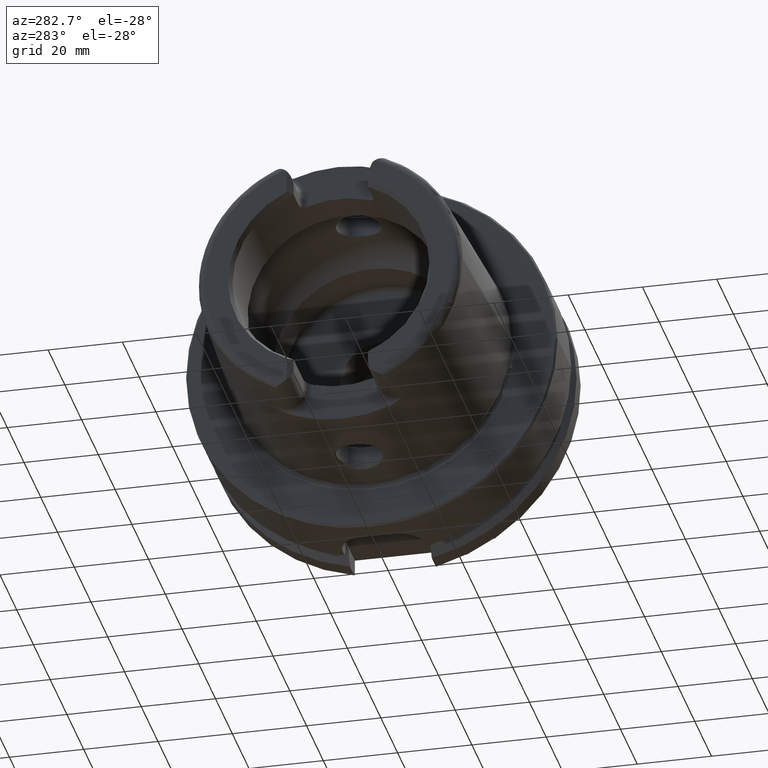
[diagram: clean part render]
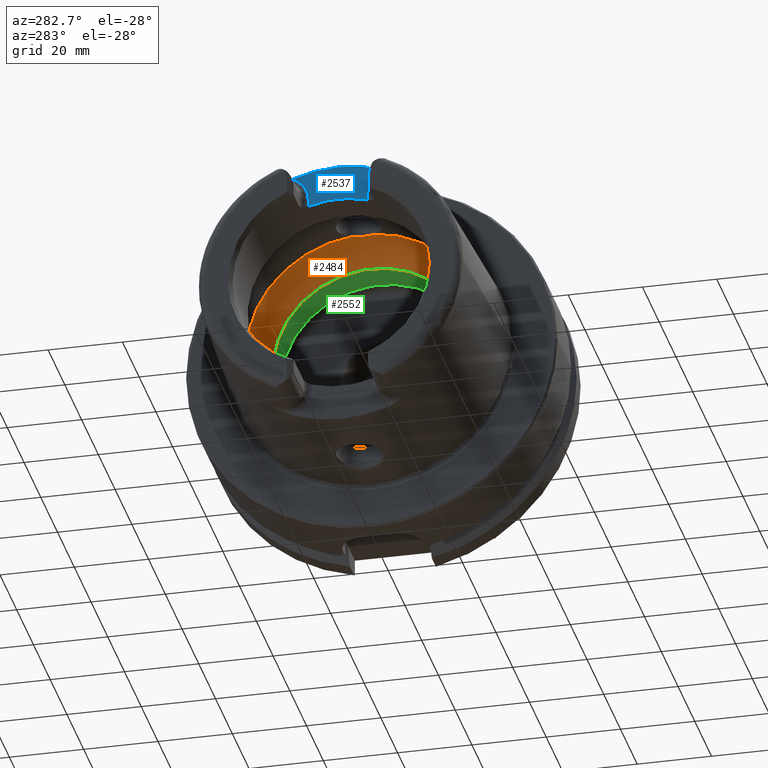
[diagram: same view with three faces highlighted in distinct colors, each labeled with its STEP entity id]
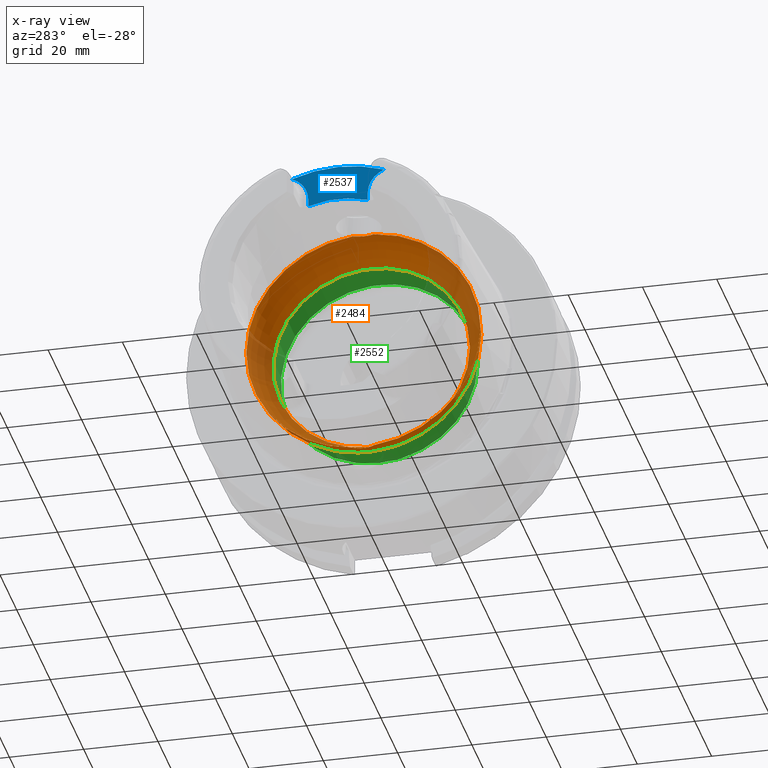
[diagram: x-ray of the same camera — body ghosted, the three highlighted faces saturated]
A machine part, auxiliary view with three faces highlighted in distinct colors.
The next image is the same camera in x-ray (body ghosted, the three faces saturated) — at least one of them is partly hidden behind the body in this view.
Their STEP definitions:

[orange] entity #2484 — the highlighted toroidal blend (fillet) surface has major radius 19.5 mm and minor (blend) radius 12 mm.
#36=TOROIDAL_SURFACE('',#2715,19.5,12.);
#177=CIRCLE('',#2710,31.5);
#180=CIRCLE('',#2713,31.5);
#181=CIRCLE('',#2714,31.5);
#182=CIRCLE('',#2716,26.5);
#183=CIRCLE('',#2717,26.5);
#184=CIRCLE('',#2718,12.);
#470=FACE_OUTER_BOUND('',#614,.T.);
#614=EDGE_LOOP('',(#1949,#1950,#1951,#1952,#1953,#1954,#1955,#1956,#1957,
#1958,#1959));
#745=B_SPLINE_CURVE_WITH_KNOTS('',3,(#4610,#4611,#4612,#4613,#4614,#4615,
#4616,#4617,#4618,#4619),.UNSPECIFIED.,.F.,.F.,(4,2,2,2,4),(-0.606113644645353,
-0.532141714710631,-0.407956541554012,-0.344441109025195,-0.303157612487306),
 .UNSPECIFIED.);
#747=B_SPLINE_CURVE_WITH_KNOTS('',3,(#4652,#4653,#4654,#4655,#4656,#4657,
#4658,#4659,#4660,#4661),.UNSPECIFIED.,.F.,.F.,(4,2,2,2,4),(-0.303157612487306,
-0.297161587155601,-0.247817233363509,-0.174446982686599,0.),
 .UNSPECIFIED.);
#750=B_SPLINE_CURVE_WITH_KNOTS('',3,(#4802,#4803,#4804,#4805,#4806,#4807,
#4808,#4809,#4810,#4811),.UNSPECIFIED.,.F.,.F.,(4,2,2,2,4),(-0.606113644645388,
-0.532141714710621,-0.407956541553997,-0.344441109025146,-0.303157612487227),
 .UNSPECIFIED.);
#752=B_SPLINE_CURVE_WITH_KNOTS('',3,(#4844,#4845,#4846,#4847,#4848,#4849,
#4850,#4851,#4852,#4853),.UNSPECIFIED.,.F.,.F.,(4,2,2,2,4),(-0.303157612487227,
-0.297161587155532,-0.247817233363497,-0.174446982686607,0.),
 .UNSPECIFIED.);
#1156=VERTEX_POINT('',#4607);
#1157=VERTEX_POINT('',#4609);
#1158=VERTEX_POINT('',#4620);
#1161=VERTEX_POINT('',#4800);
#1162=VERTEX_POINT('',#4801);
#1163=VERTEX_POINT('',#4812);
#1164=VERTEX_POINT('',#4856);
#1167=VERTEX_POINT('',#4866);
#1168=VERTEX_POINT('',#4867);
#1444=EDGE_CURVE('',#1157,#1156,#745,.T.);
#1446=EDGE_CURVE('',#1156,#1158,#747,.T.);
#1450=EDGE_CURVE('',#1161,#1162,#750,.T.);
#1452=EDGE_CURVE('',#1162,#1163,#752,.T.);
#1454=EDGE_CURVE('',#1164,#1161,#177,.T.);
#1458=EDGE_CURVE('',#1158,#1164,#180,.T.);
#1459=EDGE_CURVE('',#1163,#1157,#181,.T.);
#1460=EDGE_CURVE('',#1167,#1168,#182,.T.);
#1461=EDGE_CURVE('',#1168,#1167,#183,.T.);
#1462=EDGE_CURVE('',#1168,#1156,#184,.T.);
#1949=ORIENTED_EDGE('',*,*,#1460,.F.);
#1950=ORIENTED_EDGE('',*,*,#1461,.F.);
#1951=ORIENTED_EDGE('',*,*,#1462,.T.);
#1952=ORIENTED_EDGE('',*,*,#1446,.T.);
#1953=ORIENTED_EDGE('',*,*,#1458,.T.);
#1954=ORIENTED_EDGE('',*,*,#1454,.T.);
#1955=ORIENTED_EDGE('',*,*,#1450,.T.);
#1956=ORIENTED_EDGE('',*,*,#1452,.T.);
#1957=ORIENTED_EDGE('',*,*,#1459,.T.);
#1958=ORIENTED_EDGE('',*,*,#1444,.T.);
#1959=ORIENTED_EDGE('',*,*,#1462,.F.);
#2484=ADVANCED_FACE('',(#470),#36,.F.);
#2710=AXIS2_PLACEMENT_3D('',#4857,#3178,#3179);
#2713=AXIS2_PLACEMENT_3D('',#4863,#3185,#3186);
#2714=AXIS2_PLACEMENT_3D('',#4864,#3187,#3188);
#2715=AXIS2_PLACEMENT_3D('',#4865,#3189,#3190);
#2716=AXIS2_PLACEMENT_3D('',#4868,#3191,#3192);
#2717=AXIS2_PLACEMENT_3D('',#4869,#3193,#3194);
#2718=AXIS2_PLACEMENT_3D('',#4870,#3195,#3196);
#3178=DIRECTION('center_axis',(-1.,0.,0.));
#3179=DIRECTION('ref_axis',(0.,0.,1.));
#3185=DIRECTION('center_axis',(-1.,0.,0.));
#3186=DIRECTION('ref_axis',(0.,0.,1.));
#3187=DIRECTION('center_axis',(-1.,0.,0.));
#3188=DIRECTION('ref_axis',(0.,0.,1.));
#3189=DIRECTION('center_axis',(-1.,0.,0.));
#3190=DIRECTION('ref_axis',(0.,0.,1.));
#3191=DIRECTION('center_axis',(-1.,0.,0.));
#3192=DIRECTION('ref_axis',(0.,0.,1.));
#3193=DIRECTION('center_axis',(-1.,0.,0.));
#3194=DIRECTION('ref_axis',(0.,0.,1.));
#3195=DIRECTION('center_axis',(0.,1.,-1.22464679914735E-16));
#3196=DIRECTION('ref_axis',(0.,-1.22464679914735E-16,-1.));
#4607=CARTESIAN_POINT('',(-9.,8.53116613017712E-16,-31.4767398822284));
#4609=CARTESIAN_POINT('',(-9.74679434480896,2.89893607109041,-31.3663222207471));
#4610=CARTESIAN_POINT('Ctrl Pts',(-9.74679434480898,2.89893607109041,-31.3663222207471));
#4611=CARTESIAN_POINT('Ctrl Pts',(-9.62803941549252,2.68373847757038,-31.3862111979079));
#4612=CARTESIAN_POINT('Ctrl Pts',(-9.52250794022164,2.46123932380009,-31.4027818190648));
#4613=CARTESIAN_POINT('Ctrl Pts',(-9.27707880675082,1.84905941644996,-31.4398086116956));
#4614=CARTESIAN_POINT('Ctrl Pts',(-9.16318715371328,1.45014848778478,-31.4552463037839));
#4615=CARTESIAN_POINT('Ctrl Pts',(-9.05448554629564,0.83406948853474,-31.4697090180031));
#4616=CARTESIAN_POINT('Ctrl Pts',(-9.02875508102837,0.623753972628784,-31.4730355369691));
#4617=CARTESIAN_POINT('Ctrl Pts',(-9.00473516300901,0.275210595137741,-31.4761342948647));
#4618=CARTESIAN_POINT('Ctrl Pts',(-9.,0.13762179988616,-31.4767398822284));
#4619=CARTESIAN_POINT('Ctrl Pts',(-9.,9.71445146547012E-16,-31.4767398822284));
#4620=CARTESIAN_POINT('',(-9.74679434480896,-2.89893607109041,-31.3663222207471));
#4652=CARTESIAN_POINT('Ctrl Pts',(-9.,9.83483832277069E-16,-31.4767398822284));
#4653=CARTESIAN_POINT('Ctrl Pts',(-9.,-0.0199882245331354,-31.4767398822284));
#4654=CARTESIAN_POINT('Ctrl Pts',(-9.00009988237686,-0.0399771452902417,
-31.4767270717783));
#4655=CARTESIAN_POINT('Ctrl Pts',(-9.00194380057016,-0.224464346212316,
-31.4764905359115));
#4656=CARTESIAN_POINT('Ctrl Pts',(-9.01035297969853,-0.388827878343727,
-31.4754151841588));
#4657=CARTESIAN_POINT('Ctrl Pts',(-9.0480310904853,-0.796171644009328,-31.4705320701686));
#4658=CARTESIAN_POINT('Ctrl Pts',(-9.08543037238412,-1.03809779370842,-31.4656619259797));
#4659=CARTESIAN_POINT('Ctrl Pts',(-9.26119500081336,-1.84501079512327,-31.441850680052));
#4660=CARTESIAN_POINT('Ctrl Pts',(-9.4667592962906,-2.39148034786879,-31.4132222586341));
#4661=CARTESIAN_POINT('Ctrl Pts',(-9.74679434480898,-2.89893607109041,-31.3663222207471));
#4800=CARTESIAN_POINT('',(-9.74679434480896,-2.89893607109042,31.3663222207471));
#4801=CARTESIAN_POINT('',(-8.99999999999999,7.8372767397864E-16,31.4767398822284));
#4802=CARTESIAN_POINT('Ctrl Pts',(-9.74679434480898,-2.89893607109042,31.3663222207471));
#4803=CARTESIAN_POINT('Ctrl Pts',(-9.62803941549257,-2.6837384775705,31.3862111979079));
#4804=CARTESIAN_POINT('Ctrl Pts',(-9.52250794022172,-2.46123932380032,31.4027818190648));
#4805=CARTESIAN_POINT('Ctrl Pts',(-9.27707880675083,-1.84905941645004,31.4398086116956));
#4806=CARTESIAN_POINT('Ctrl Pts',(-9.16318715371328,-1.45014848778485,31.4552463037839));
#4807=CARTESIAN_POINT('Ctrl Pts',(-9.05448554629561,-0.834069488534672,
31.4697090180031));
#4808=CARTESIAN_POINT('Ctrl Pts',(-9.02875508102836,-0.623753972628598,
31.4730355369691));
#4809=CARTESIAN_POINT('Ctrl Pts',(-9.00473516300902,-0.275210595137865,
31.4761342948647));
#4810=CARTESIAN_POINT('Ctrl Pts',(-8.99999999999999,-0.137621799886392,
31.4767398822284));
#4811=CARTESIAN_POINT('Ctrl Pts',(-8.99999999999999,9.0205620750794E-16,
31.4767398822284));
#4812=CARTESIAN_POINT('',(-9.74679434480896,2.89893607109042,31.3663222207471));
#4844=CARTESIAN_POINT('Ctrl Pts',(-8.99999999999999,8.7920239009422E-16,
31.4767398822284));
#4845=CARTESIAN_POINT('Ctrl Pts',(-8.99999999999999,0.0199882245331231,
31.4767398822284));
#4846=CARTESIAN_POINT('Ctrl Pts',(-9.00009988237684,0.0399771452902225,
31.4767270717783));
#4847=CARTESIAN_POINT('Ctrl Pts',(-9.00194380057014,0.224464346212396,31.4764905359115));
#4848=CARTESIAN_POINT('Ctrl Pts',(-9.01035297969852,0.388827878343765,31.4754151841588));
#4849=CARTESIAN_POINT('Ctrl Pts',(-9.0480310904853,0.79617164400948,31.4705320701686));
#4850=CARTESIAN_POINT('Ctrl Pts',(-9.08543037238414,1.03809779370849,31.4656619259797));
#4851=CARTESIAN_POINT('Ctrl Pts',(-9.26119500081334,1.84501079512323,31.441850680052));
#4852=CARTESIAN_POINT('Ctrl Pts',(-9.46675929629059,2.39148034786878,31.4132222586341));
#4853=CARTESIAN_POINT('Ctrl Pts',(-9.74679434480898,2.89893607109043,31.3663222207471));
#4856=CARTESIAN_POINT('',(-9.74679434480896,-31.5,3.85763741731416E-15));
#4857=CARTESIAN_POINT('Origin',(-9.74679434480896,0.,0.));
#4863=CARTESIAN_POINT('Origin',(-9.74679434480896,0.,0.));
#4864=CARTESIAN_POINT('Origin',(-9.74679434480896,0.,0.));
#4865=CARTESIAN_POINT('Origin',(-9.74679434480896,0.,0.));
#4866=CARTESIAN_POINT('',(0.,-26.5,3.24531401774049E-15));
#4867=CARTESIAN_POINT('',(0.,-3.24531401774049E-15,-26.5));
#4868=CARTESIAN_POINT('Origin',(0.,0.,0.));
#4869=CARTESIAN_POINT('Origin',(0.,0.,0.));
#4870=CARTESIAN_POINT('Origin',(-9.74679434480896,-2.38806125833734E-15,
-19.5));

[blue] entity #2537 — the highlighted planar face has unit normal (-1, 0, 0).
#106=PLANE('',#2818);
#175=CIRCLE('',#2705,36.003493987976);
#218=CIRCLE('',#2791,6.88);
#220=CIRCLE('',#2794,6.88);
#232=CIRCLE('',#2819,26.5);
#523=FACE_OUTER_BOUND('',#670,.T.);
#670=EDGE_LOOP('',(#2242,#2243,#2244,#2245,#2246,#2247));
#883=LINE('',#5367,#1003);
#884=LINE('',#5396,#1004);
#1003=VECTOR('',#3384,10.);
#1004=VECTOR('',#3397,10.);
#1153=VERTEX_POINT('',#4545);
#1154=VERTEX_POINT('',#4562);
#1245=VERTEX_POINT('',#5364);
#1246=VERTEX_POINT('',#5366);
#1247=VERTEX_POINT('',#5381);
#1248=VERTEX_POINT('',#5385);
#1439=EDGE_CURVE('',#1153,#1154,#175,.T.);
#1577=EDGE_CURVE('',#1245,#1246,#883,.T.);
#1579=EDGE_CURVE('',#1154,#1245,#218,.T.);
#1581=EDGE_CURVE('',#1247,#1153,#220,.T.);
#1583=EDGE_CURVE('',#1248,#1247,#884,.T.);
#1604=EDGE_CURVE('',#1246,#1248,#232,.T.);
#2242=ORIENTED_EDGE('',*,*,#1579,.F.);
#2243=ORIENTED_EDGE('',*,*,#1439,.F.);
#2244=ORIENTED_EDGE('',*,*,#1581,.F.);
#2245=ORIENTED_EDGE('',*,*,#1583,.F.);
#2246=ORIENTED_EDGE('',*,*,#1604,.F.);
#2247=ORIENTED_EDGE('',*,*,#1577,.F.);
#2537=ADVANCED_FACE('',(#523),#106,.T.);
#2705=AXIS2_PLACEMENT_3D('',#4563,#3165,#3166);
#2791=AXIS2_PLACEMENT_3D('',#5379,#3387,#3388);
#2794=AXIS2_PLACEMENT_3D('',#5383,#3393,#3394);
#2818=AXIS2_PLACEMENT_3D('',#5454,#3449,#3450);
#2819=AXIS2_PLACEMENT_3D('',#5455,#3451,#3452);
#3165=DIRECTION('center_axis',(1.,0.,0.));
#3166=DIRECTION('ref_axis',(0.,1.,0.));
#3384=DIRECTION('',(0.,0.,-1.));
#3387=DIRECTION('center_axis',(-1.,0.,0.));
#3388=DIRECTION('ref_axis',(0.,0.564947834751706,0.82512662301574));
#3393=DIRECTION('center_axis',(-1.,0.,0.));
#3394=DIRECTION('ref_axis',(0.,-0.564947834751705,0.825126623015741));
#3397=DIRECTION('',(0.,0.,1.));
#3449=DIRECTION('center_axis',(-1.,0.,0.));
#3450=DIRECTION('ref_axis',(0.,0.,1.));
#3451=DIRECTION('center_axis',(-1.,0.,0.));
#3452=DIRECTION('ref_axis',(0.,1.,0.));
#4545=CARTESIAN_POINT('',(-40.,12.4227760464511,33.7923987701664));
#4562=CARTESIAN_POINT('',(-40.,-12.4227760464511,33.7923987701664));
#4563=CARTESIAN_POINT('Origin',(-40.,0.,0.));
#5364=CARTESIAN_POINT('',(-40.,-8.01,27.37));
#5366=CARTESIAN_POINT('',(-40.,-8.01,25.2604414054862));
#5367=CARTESIAN_POINT('',(-40.,-8.01,23.5));
#5379=CARTESIAN_POINT('Origin',(-40.,-14.89,27.37));
#5381=CARTESIAN_POINT('',(-40.,8.01,27.37));
#5383=CARTESIAN_POINT('Origin',(-40.,14.89,27.37));
#5385=CARTESIAN_POINT('',(-40.,8.01,25.2604414054862));
#5396=CARTESIAN_POINT('',(-40.,8.01,28.185));
#5454=CARTESIAN_POINT('Origin',(-40.,0.,29.));
#5455=CARTESIAN_POINT('Origin',(-40.,0.,0.));

[green] entity #2552 — the highlighted cylindrical surface (bore or boss wall) has radius 26.5 mm, axis along (-1, 0, 0).
#182=CIRCLE('',#2716,26.5);
#183=CIRCLE('',#2717,26.5);
#247=CIRCLE('',#2848,26.5);
#248=CIRCLE('',#2849,26.5);
#538=FACE_OUTER_BOUND('',#688,.T.);
#688=EDGE_LOOP('',(#2320,#2321,#2322,#2323,#2324,#2325));
#896=LINE('',#5514,#1016);
#1016=VECTOR('',#3519,26.5);
#1167=VERTEX_POINT('',#4866);
#1168=VERTEX_POINT('',#4867);
#1266=VERTEX_POINT('',#5508);
#1267=VERTEX_POINT('',#5510);
#1460=EDGE_CURVE('',#1167,#1168,#182,.T.);
#1461=EDGE_CURVE('',#1168,#1167,#183,.T.);
#1624=EDGE_CURVE('',#1266,#1267,#247,.T.);
#1625=EDGE_CURVE('',#1267,#1266,#248,.T.);
#1626=EDGE_CURVE('',#1267,#1167,#896,.T.);
#2320=ORIENTED_EDGE('',*,*,#1625,.F.);
#2321=ORIENTED_EDGE('',*,*,#1626,.T.);
#2322=ORIENTED_EDGE('',*,*,#1460,.T.);
#2323=ORIENTED_EDGE('',*,*,#1461,.T.);
#2324=ORIENTED_EDGE('',*,*,#1626,.F.);
#2325=ORIENTED_EDGE('',*,*,#1624,.F.);
#2432=CYLINDRICAL_SURFACE('',#2850,26.5);
#2552=ADVANCED_FACE('',(#538),#2432,.F.);
#2716=AXIS2_PLACEMENT_3D('',#4868,#3191,#3192);
#2717=AXIS2_PLACEMENT_3D('',#4869,#3193,#3194);
#2848=AXIS2_PLACEMENT_3D('',#5511,#3513,#3514);
#2849=AXIS2_PLACEMENT_3D('',#5512,#3515,#3516);
#2850=AXIS2_PLACEMENT_3D('',#5513,#3517,#3518);
#3191=DIRECTION('center_axis',(-1.,0.,0.));
#3192=DIRECTION('ref_axis',(0.,0.,1.));
#3193=DIRECTION('center_axis',(-1.,0.,0.));
#3194=DIRECTION('ref_axis',(0.,0.,1.));
#3513=DIRECTION('center_axis',(-1.,0.,0.));
#3514=DIRECTION('ref_axis',(0.,0.,1.));
#3515=DIRECTION('center_axis',(-1.,0.,0.));
#3516=DIRECTION('ref_axis',(0.,0.,1.));
#3517=DIRECTION('center_axis',(-1.,0.,0.));
#3518=DIRECTION('ref_axis',(0.,1.,0.));
#3519=DIRECTION('',(-1.,0.,0.));
#4866=CARTESIAN_POINT('',(0.,-26.5,3.24531401774049E-15));
#4867=CARTESIAN_POINT('',(0.,-3.24531401774049E-15,-26.5));
#4868=CARTESIAN_POINT('Origin',(0.,0.,0.));
#4869=CARTESIAN_POINT('Origin',(0.,0.,0.));
#5508=CARTESIAN_POINT('',(9.3,-3.24531401774049E-15,-26.5));
#5510=CARTESIAN_POINT('',(9.3,-26.5,3.24531401774049E-15));
#5511=CARTESIAN_POINT('Origin',(9.3,0.,0.));
#5512=CARTESIAN_POINT('Origin',(9.3,0.,0.));
#5513=CARTESIAN_POINT('Origin',(4.65,0.,0.));
#5514=CARTESIAN_POINT('',(4.65,-26.5,3.24531401774049E-15));